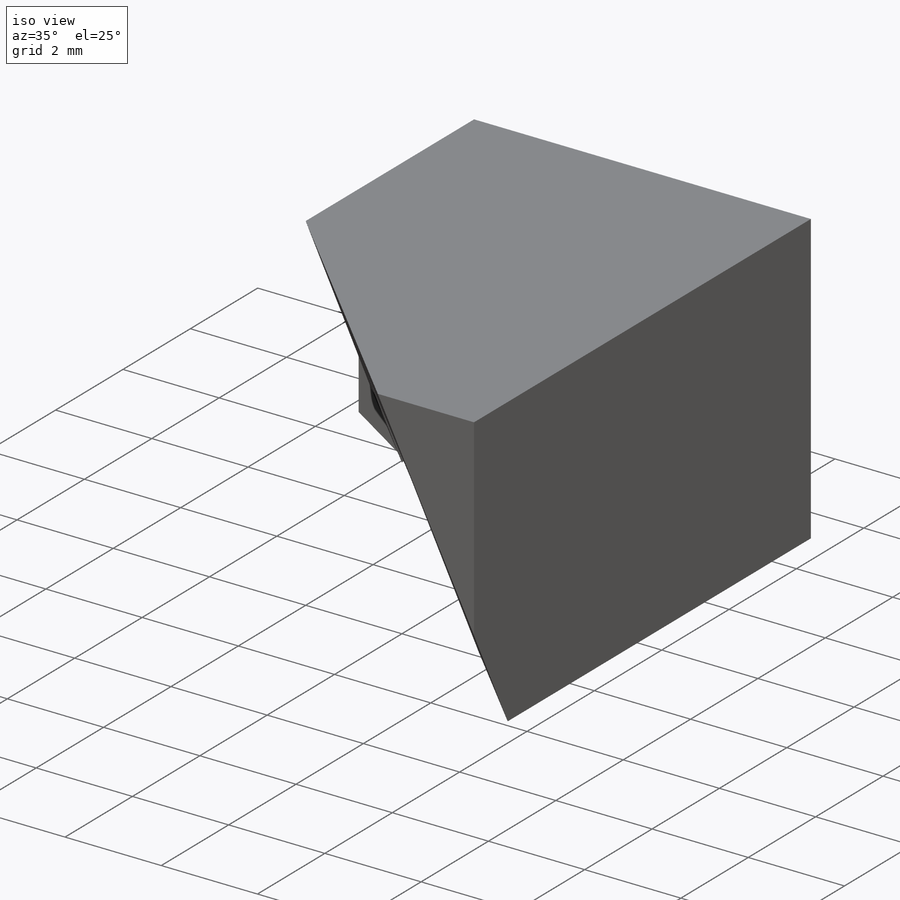
[diagram: iso view]
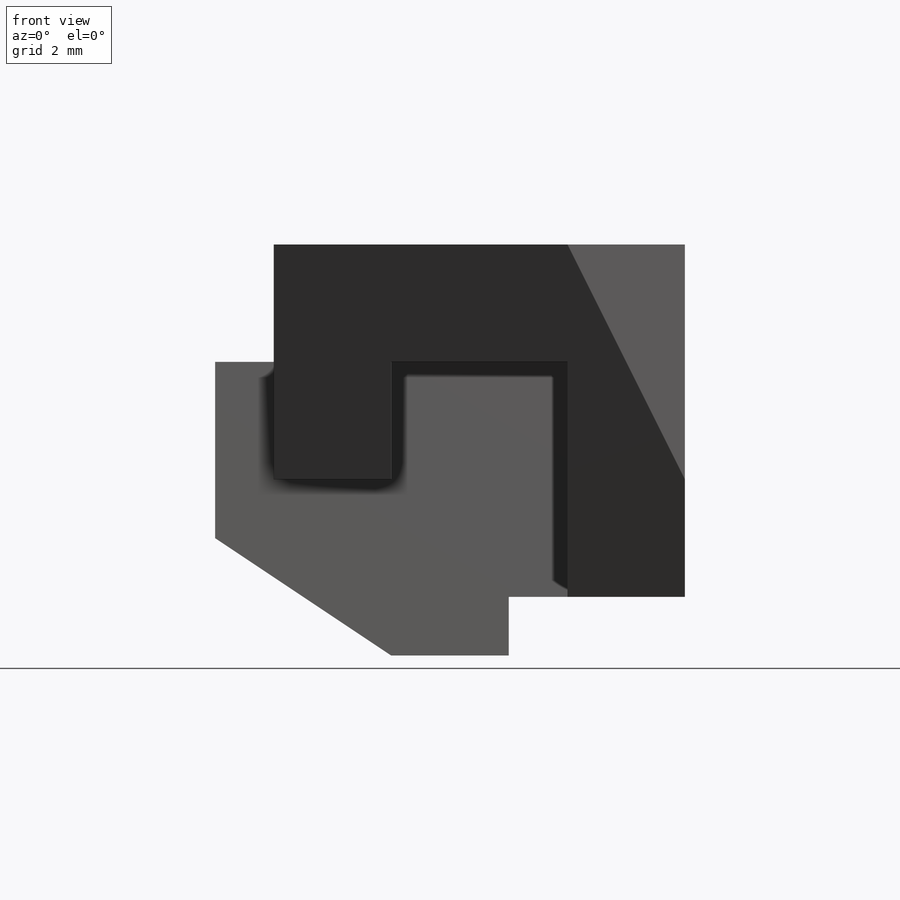
[diagram: front view]
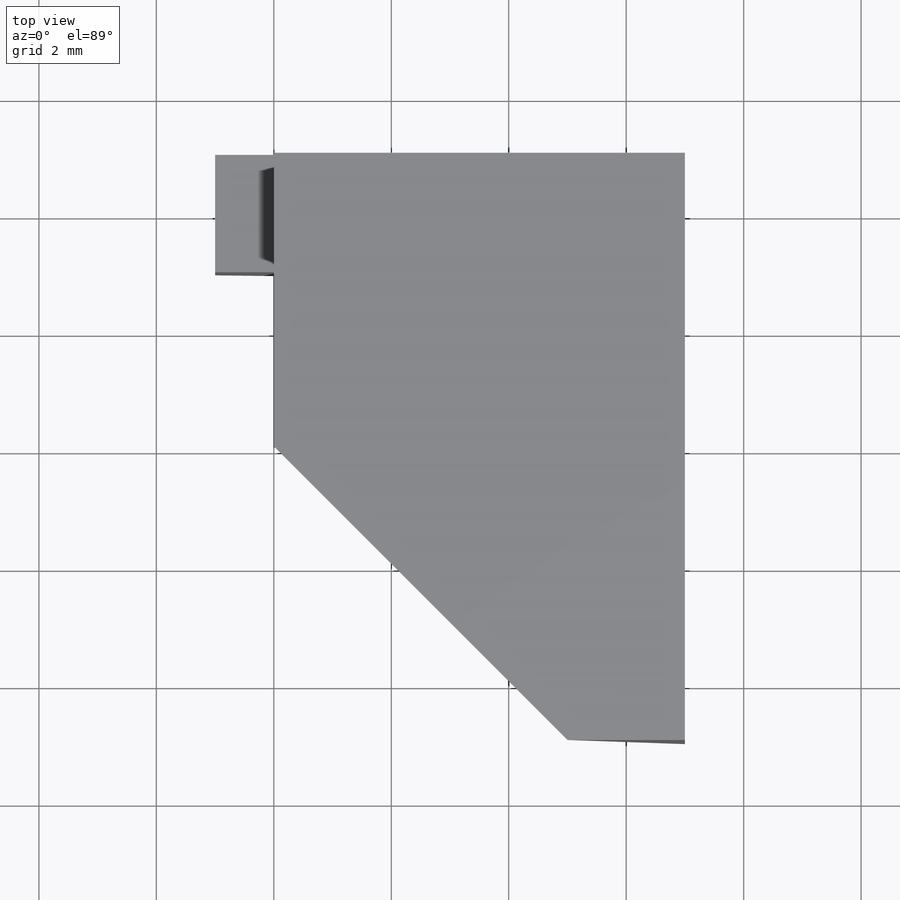
[diagram: top view]
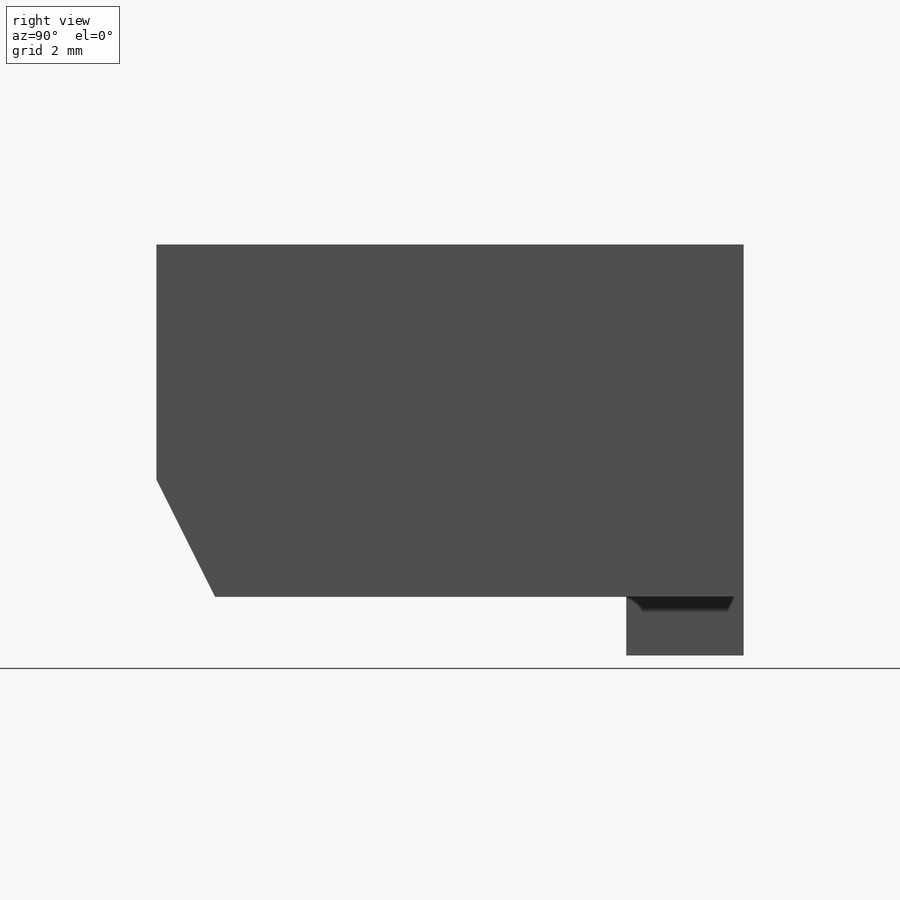
[diagram: right view]
SOLIDWORKS PART (.sldprt)
format: sldprt  version: not decoded by parser v0  size: 252,928 bytes
history: native  units: mm
features: sketch x8, cut_extrude x5, material x1, extrude x1, plane x1 (+13 scaffold rows collapsed)
feature tree (29):
  scaffold x13  (default folders/planes/origin — collapsed)
  material  "Material <not specified>"
  sketch  "Sketch1"  dims[D1=7.0mm D2=6.0mm D3=2.0mm D4=1.0mm D5=1.0mm D6=2.0mm D7=3.0mm D8=2.0mm D9=3.0mm D10=4.0mm D11=2.0mm D12=4.0mm D13=7.0mm]
  extrude  "Boss-Extrude1"  Depth=10mm
  sketch  "Sketch2"  dims[D1=2.0mm D2=2.0mm D3=2.0mm D4=3.0mm D5=2.0mm]
  cut_extrude  "Cut-Extrude1"  Depth=8mm
  sketch  "Sketch4"  dims[D1=3.0mm]
  cut_extrude  "Cut-Extrude5"  [1 undecoded]
  sketch  "Sketch5"  dims[D1=3.0mm]
  cut_extrude  "Cut-Extrude6"  [1 undecoded]
  sketch  "Sketch7"  dims[D1=5.0mm D2=1.0mm]
  sketch  "Sketch8"  dims[c1.D1=5.0mm c1.D2=5.0mm c2.D1=1.0mm c2.D2=5.0mm]
  plane  "Plane1"
  sketch  "Sketch9"  dims[D1=~7.602406mm]
  cut_extrude  "Cut-Extrude7"  Depth=10mm
  sketch  "Sketch10"  dims[D1=1.0mm D2=~2.001006mm]
  cut_extrude  "Cut-Extrude10"  Depth=1mm
decode coverage: 12 of 14 modeling features carry decoded parameters
note: ~ marks probable driven/reference dimensions
note: 2 parameter values undecoded
note: suppression state not decoded; provenance and decode notes live in map.json
